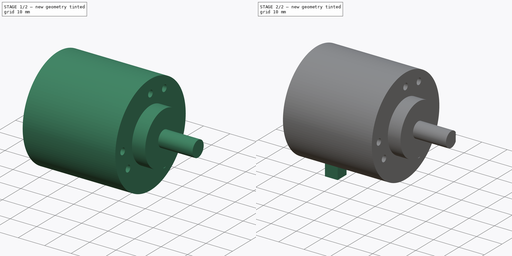
[diagram: build sequence overview — one tinted view per stage of 2, left to right]
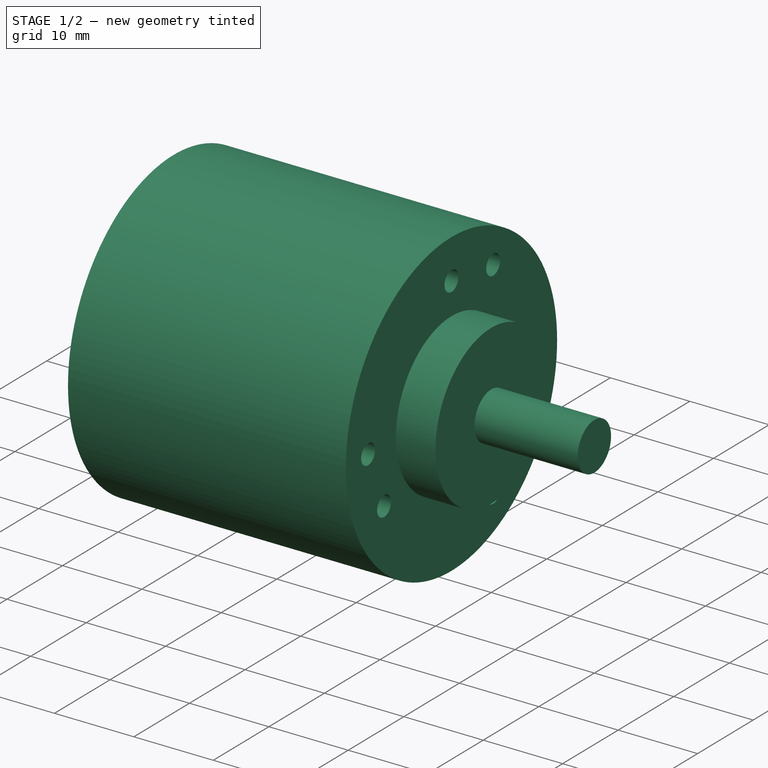
[diagram: stage 1 of 2 — iso view after this stage's code; geometry added in this stage tinted green]
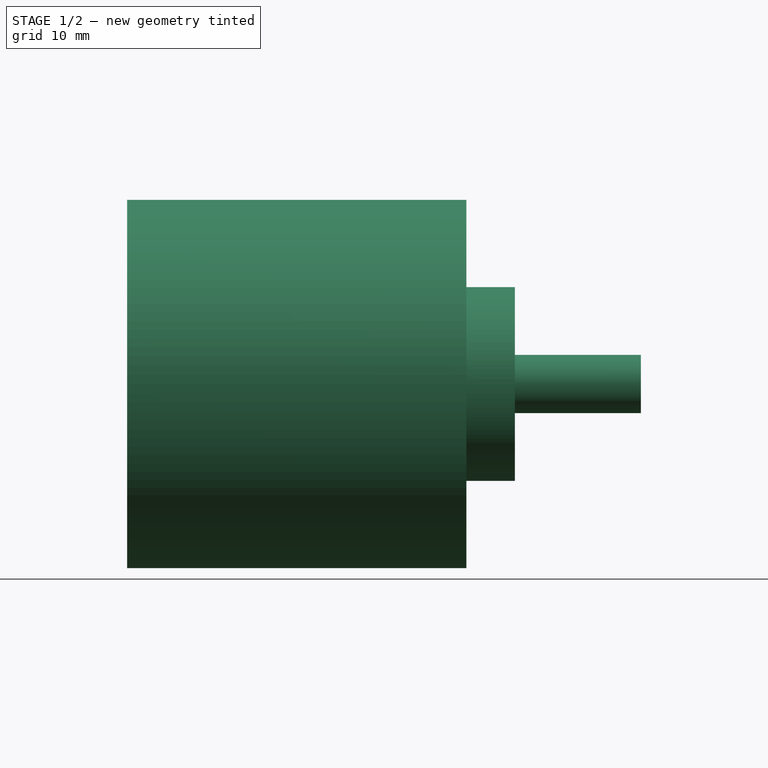
[diagram: stage 1 of 2 — front view after this stage's code; geometry added in this stage tinted green]
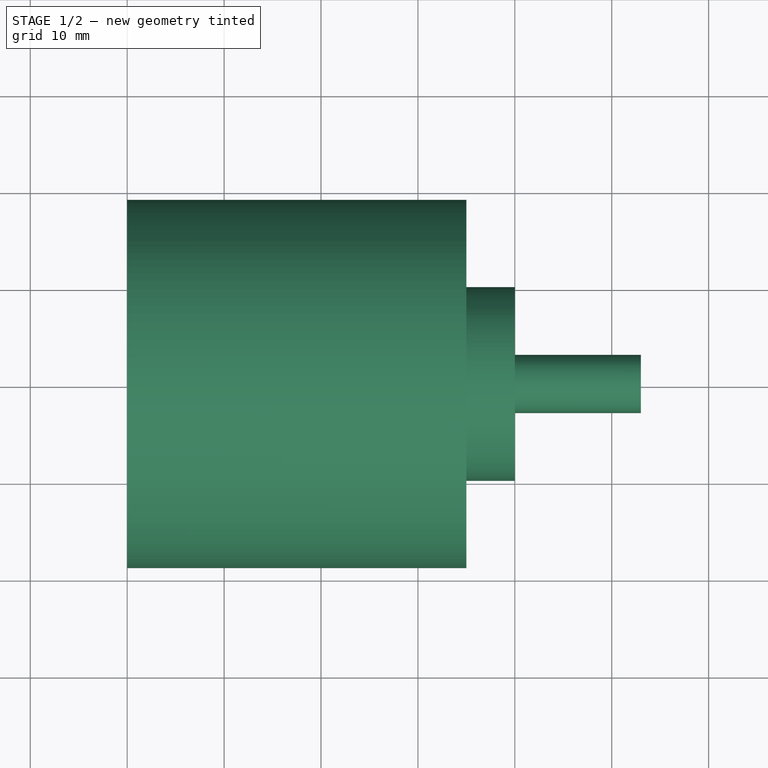
[diagram: stage 1 of 2 — top view after this stage's code; geometry added in this stage tinted green]
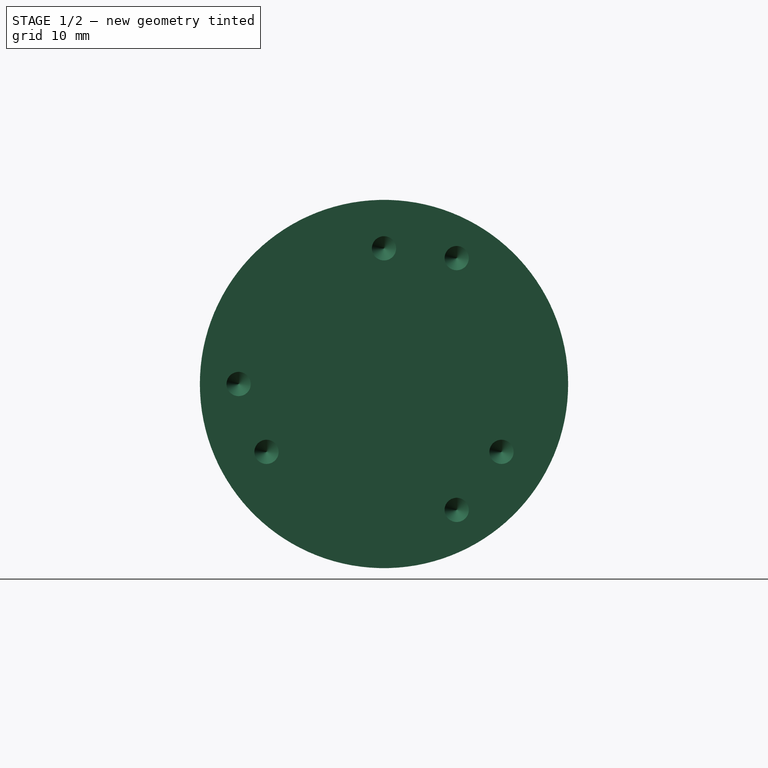
[diagram: stage 1 of 2 — right view after this stage's code; geometry added in this stage tinted green]
FCSTD DOCUMENT  (FreeCAD 0.17RUnknown)
Label: lpd3806-600bm-g5-24c
License: All rights reserved
LicenseURL: http://en.wikipedia.org/wiki/All_rights_reserved
objects: Sketcher::SketchObject×4, PartDesign::Revolution×1, PartDesign::Hole×1, PartDesign::Pocket×1, PartDesign::Pad×1, PartDesign::Body×1
note: 13 computed .brp shape members not serialized (recipe doc carries the construction recipe); baked Part::Feature solids carry a one-line shape summary decoded from their .brp

FEATURE [Sketcher::SketchObject] Sketch
  MapMode = 5
  Support = -> [XY_Plane]
  sketch-geometry (8):
    g0: LineSegment StartX=0 StartY=0 StartZ=0 EndX=0 EndY=19 EndZ=0
    g1: LineSegment StartX=0 StartY=19 StartZ=0 EndX=35 EndY=19 EndZ=0
    g2: LineSegment StartX=35 StartY=19 StartZ=0 EndX=35 EndY=10 EndZ=0
    g3: LineSegment StartX=35 StartY=10 StartZ=0 EndX=40 EndY=10 EndZ=0
    g4: LineSegment StartX=40 StartY=10 StartZ=0 EndX=40 EndY=3 EndZ=0
    g5: LineSegment StartX=40 StartY=3 StartZ=0 EndX=53 EndY=3 EndZ=0
    g6: LineSegment StartX=53 StartY=3 StartZ=0 EndX=53 EndY=0 EndZ=0
    g7: LineSegment StartX=53 StartY=0 StartZ=0 EndX=0 EndY=0 EndZ=0
  constraints (23):
    c: Coincident(g-1,g0)
    c: Vertical(g0)
    c: Coincident(g0,g1)
    c: Horizontal(g1)
    c: Coincident(g1,g2)
    c: Vertical(g2)
    c: Coincident(g2,g3)
    c: Horizontal(g3)
    c: Coincident(g3,g4)
    c: Vertical(g4)
    c: Coincident(g4,g5)
    c: Horizontal(g5)
    c: Coincident(g5,g6)
    c: PointOnObject(g6,g-1)
    c: Vertical(g6)
    c: Coincident(g6,g7)
    c: Coincident(g7,g0)
    c: DistanceX(g5,g5) = 13
    c: DistanceX(g3,g3) = 5
    c: DistanceX(g1,g1) = 35
    c: DistanceY(g0,g0) = 19
    c: DistanceY(g-1,g2) = 10
    c: DistanceY(g6,g6) = 3
FEATURE [PartDesign::Revolution] Revolution
  Angle = 360
  Axis = (1,0,0)
  Base = (0,0,0)
  Profile = -> Sketch
  ReferenceAxis = -> Sketch [H_Axis]
FEATURE [Sketcher::SketchObject] Sketch001
  MapMode = 5
  Placement = pos=(35,0,0) rot=(0.57735,0.57735,0.57735;2.0944rad)
  Support = -> [Revolution]
  sketch-geometry (14):
    g0: Circle [constr] CenterX=0 CenterY=0 CenterZ=0 NormalX=0 NormalY=0 NormalZ=1 AngleXU=0 Radius=14
    g1: Circle [constr] CenterX=0 CenterY=0 CenterZ=0 NormalX=0 NormalY=0 NormalZ=1 AngleXU=0 Radius=15
    g2: LineSegment [constr] StartX=0 StartY=0 StartZ=0 EndX=0 EndY=14 EndZ=0
    g3: LineSegment [constr] StartX=0 StartY=0 StartZ=0 EndX=7.5 EndY=12.9904 EndZ=0
    g4: LineSegment [constr] StartX=0 StartY=0 StartZ=0 EndX=12.1244 EndY=-7 EndZ=0
    g5: LineSegment [constr] StartX=0 StartY=0 StartZ=0 EndX=-15 EndY=-1e-11 EndZ=0
    g6: LineSegment [constr] StartX=0 StartY=0 StartZ=0 EndX=-12.1244 EndY=-7 EndZ=0
    g7: LineSegment [constr] StartX=0 StartY=0 StartZ=0 EndX=7.5 EndY=-12.9904 EndZ=0
    g8: Circle CenterX=-15 CenterY=-1e-11 CenterZ=0 NormalX=0 NormalY=0 NormalZ=1 AngleXU=0 Radius=1.25
    g9: Circle CenterX=-12.1244 CenterY=-7 CenterZ=0 NormalX=0 NormalY=0 NormalZ=1 AngleXU=0 Radius=1.25
    g10: Circle CenterX=7.5 CenterY=-12.9904 CenterZ=0 NormalX=0 NormalY=0 NormalZ=1 AngleXU=0 Radius=1.25
    g11: Circle CenterX=12.1244 CenterY=-7 CenterZ=0 NormalX=0 NormalY=0 NormalZ=1 AngleXU=0 Radius=1.25
    g12: Circle CenterX=7.5 CenterY=12.9904 CenterZ=0 NormalX=0 NormalY=0 NormalZ=1 AngleXU=0 Radius=1.25
    g13: Circle CenterX=0 CenterY=14 CenterZ=0 NormalX=0 NormalY=0 NormalZ=1 AngleXU=0 Radius=1.25
  constraints (30):
    c: Coincident(g0,g-1)
    c: Coincident(g1,g-1)
    c: Radius(g0) = 14
    c: Radius(g1) = 15
    c: Coincident(g2,g-1)
    c: Vertical(g2)
    c: Coincident(g3,g-1)
    c: PointOnObject(g3,g1)
    c: Coincident(g4,g-1)
    c: PointOnObject(g4,g0)
    c: Coincident(g5,g-1)
    c: PointOnObject(g5,g1)
    c: Coincident(g6,g-1)
    c: Coincident(g7,g-1)
    c: PointOnObject(g7,g1)
    c: PointOnObject(g6,g0)
    c: Angle(g3,g2) = 0.523599
    c: Angle(g4,g2) = 2.0944
    c: Angle(g6,g4) = 2.0944
    c: Angle(g7,g3) = 2.0944
    c: Angle(g5,g7) = 2.0944
    c: Coincident(g8,g5)
    c: Coincident(g9,g6)
    c: Coincident(g11,g4)
    c: Coincident(g12,g3)
    c: Coincident(g13,g2)
    c: Coincident(g10,g7)
    c: Radius(g8) = 1.25
    c: Equal(g8, g9-g13) x5
    c: PointOnObject(g2,g0)
FEATURE [PartDesign::Hole] Hole
  BaseFeature = -> Revolution
  Depth = 8
  DepthType = 0
  Diameter = 2.5
  DrillPoint = 1
  DrillPointAngle = 118
  HoleCutCountersinkAngle = 90
  HoleCutDepth = 0
  HoleCutDiameter = 3
  HoleCutType = 0
  ModelActualThread = false
  Profile = -> Sketch001
  Tapered = false
  TaperedAngle = 90
  ThreadAngle = 60
  ThreadClass = 7
  ThreadCutOffInner = 0.0541266
  ThreadCutOffOuter = 0.108253
  ThreadDirection = 1
  ThreadFit = 0
  ThreadPitch = 0.5
  ThreadSize = 3
  ThreadType = 1
  Threaded = true
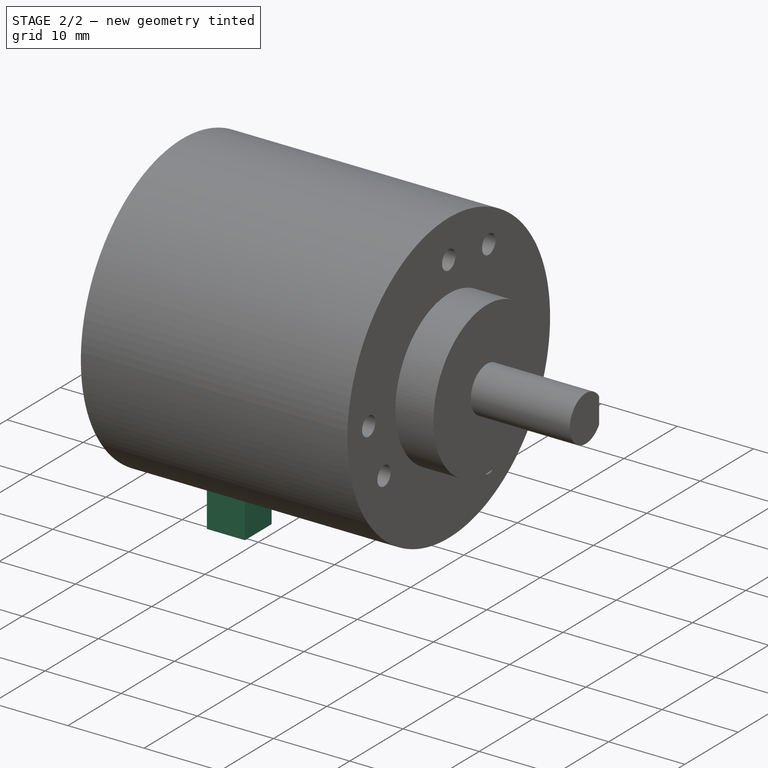
[diagram: stage 2 of 2 — iso view after this stage's code; geometry added in this stage tinted green]
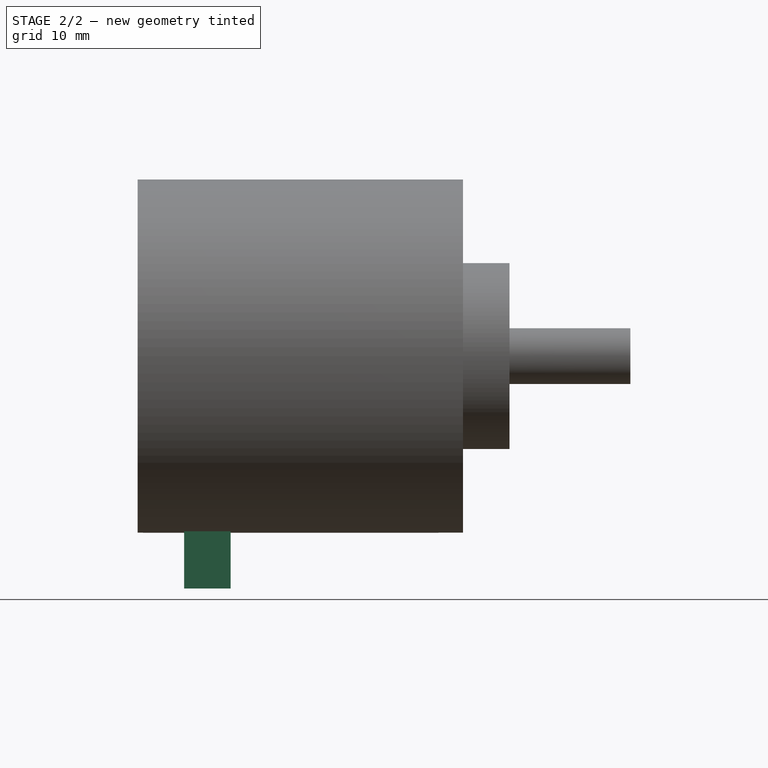
[diagram: stage 2 of 2 — front view after this stage's code; geometry added in this stage tinted green]
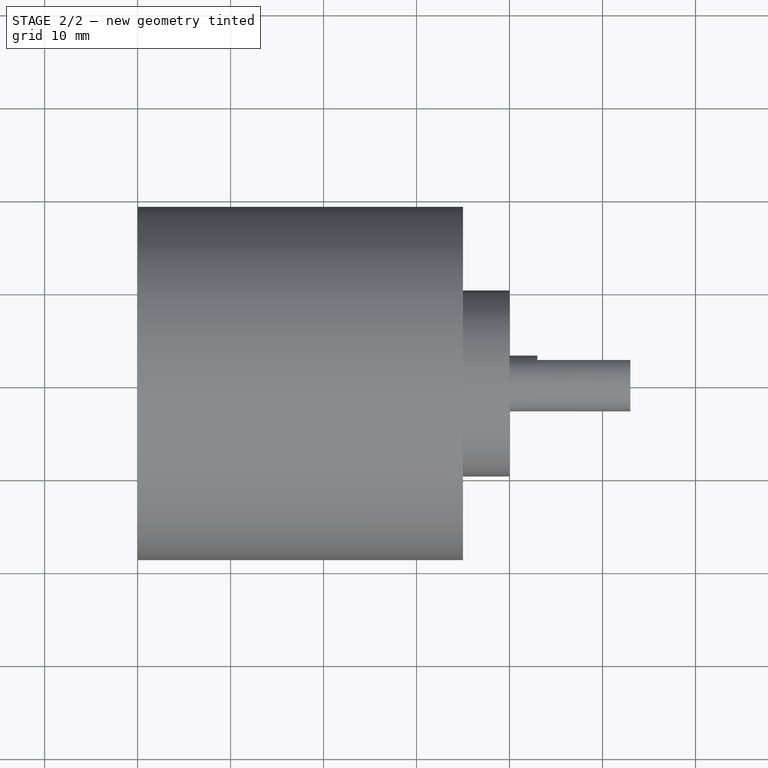
[diagram: stage 2 of 2 — top view after this stage's code; geometry added in this stage tinted green]
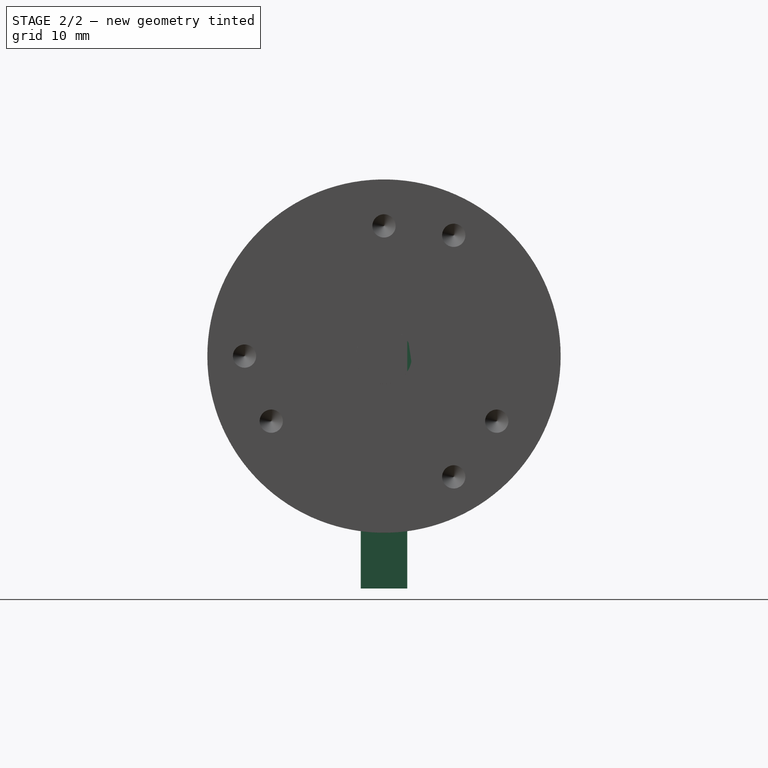
[diagram: stage 2 of 2 — right view after this stage's code; geometry added in this stage tinted green]
FEATURE [Sketcher::SketchObject] Sketch002
  MapMode = 5
  Placement = pos=(53,0,0) rot=(0.57735,0.57735,0.57735;2.0944rad)
  Support = -> [Hole]
  sketch-geometry (4):
    g0: LineSegment StartX=2.5 StartY=10 StartZ=0 EndX=22.5 EndY=10 EndZ=0
    g1: LineSegment StartX=22.5 StartY=10 StartZ=0 EndX=22.5 EndY=-10 EndZ=0
    g2: LineSegment StartX=22.5 StartY=-10 StartZ=0 EndX=2.5 EndY=-10 EndZ=0
    g3: LineSegment StartX=2.5 StartY=-10 StartZ=0 EndX=2.5 EndY=10 EndZ=0
  constraints (12):
    c: Coincident(g0,g1)
    c: Coincident(g1,g2)
    c: Coincident(g2,g3)
    c: Coincident(g3,g0)
    c: Horizontal(g0)
    c: Horizontal(g2)
    c: Vertical(g1)
    c: Vertical(g3)
    c: DistanceX(g-1,g0) = 2.5
    c: DistanceX(g0,g0) = 20
    c: DistanceY(g3,g3) = 20
    c: DistanceY(g-1,g0) = 10
FEATURE [PartDesign::Pocket] Pocket
  BaseFeature = -> Hole
  Length = 10
  Length2 = 100
  Profile = -> Sketch002
  Type = 0
FEATURE [Sketcher::SketchObject] Sketch003
  MapMode = 5
  Support = -> [XY_Plane]
  sketch-geometry (4):
    g0: LineSegment StartX=5 StartY=2.5 StartZ=0 EndX=10 EndY=2.5 EndZ=0
    g1: LineSegment StartX=10 StartY=2.5 StartZ=0 EndX=10 EndY=-2.5 EndZ=0
    g2: LineSegment StartX=10 StartY=-2.5 StartZ=0 EndX=5 EndY=-2.5 EndZ=0
    g3: LineSegment StartX=5 StartY=-2.5 StartZ=0 EndX=5 EndY=2.5 EndZ=0
  constraints (12):
    c: Coincident(g0,g1)
    c: Coincident(g1,g2)
    c: Coincident(g2,g3)
    c: Coincident(g3,g0)
    c: Horizontal(g0)
    c: Horizontal(g2)
    c: Vertical(g1)
    c: Vertical(g3)
    c: DistanceY(g1,g1) = 5
    c: DistanceX(g0,g0) = 5
    c: DistanceX(g-1,g2) = 5
    c: DistanceY(g-1,g0) = 2.5
FEATURE [PartDesign::Pad] Pad
  BaseFeature = -> Pocket
  Length = 25
  Length2 = 100
  Profile = -> Sketch003
  Reversed = true
  Type = 0
FEATURE [PartDesign::Body] Body
  Group = -> [Sketch,Revolution,Sketch001,Hole,Sketch002,Pocket,Sketch003,Pad]
  Origin = -> Origin
  Tip = -> Pad
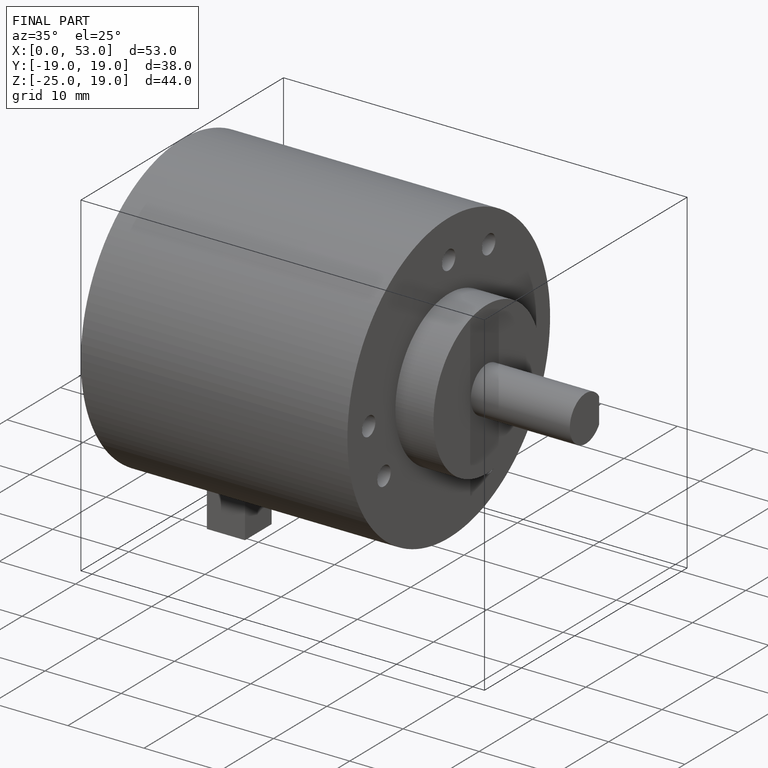
[diagram: finished part — iso view with bounding-box wireframe]
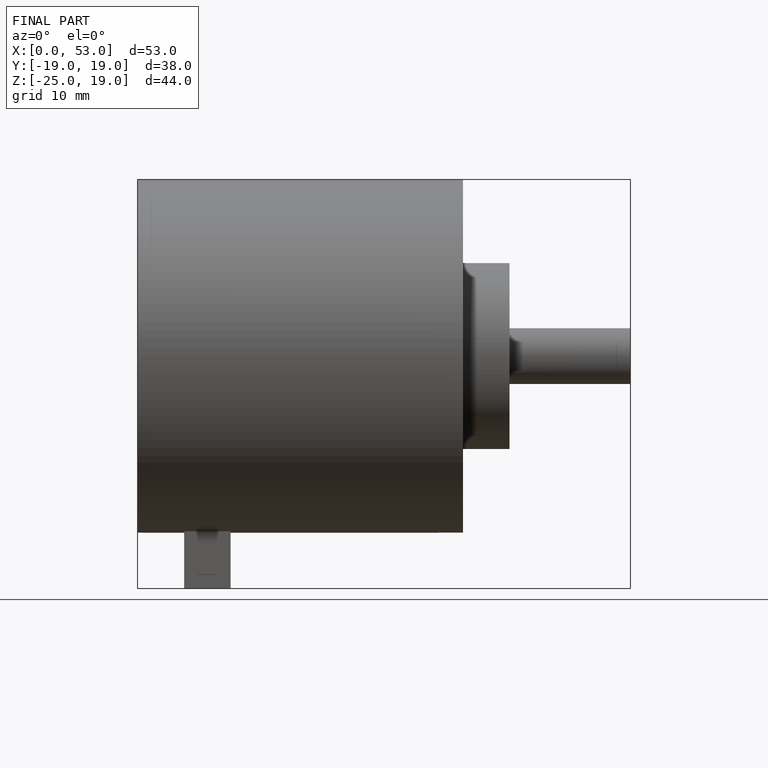
[diagram: finished part — front view with bounding-box wireframe]
